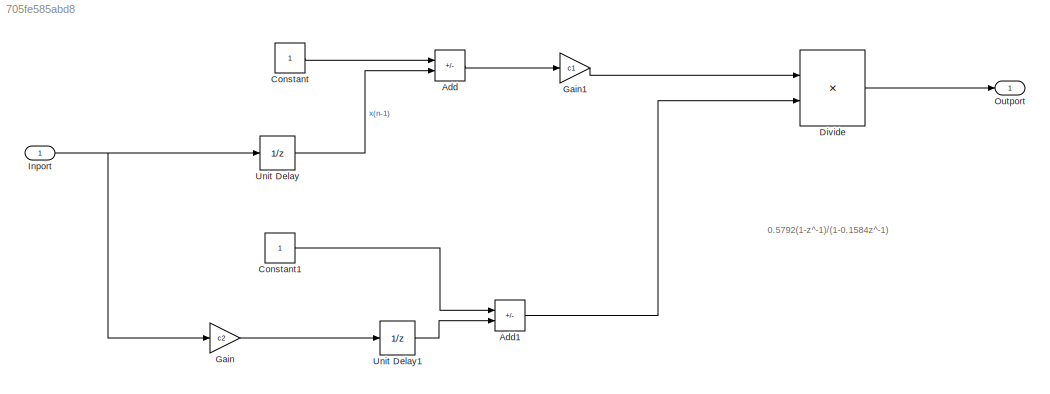
MODEL slx_705fe585abd8
KIND model
CONFIG AbsTol = auto
CONFIG EnableMultiTasking = off
CONFIG FixedStep = auto
CONFIG MaxStep = auto
CONFIG MinStep = auto
CONFIG RelTol = 1e-3
CONFIG SampleTimeConstraint = Unconstrained
CONFIG SolverName = FixedStepAuto
CONFIG StartTime = 0.0
CONFIG StopTime = 10.0
BLOCK [Sum] Add
  IconShape = rectangular
  Inputs = +-
  Ports = [2, 1]
BLOCK [Sum] Add1
  IconShape = rectangular
  Inputs = +-
  Ports = [2, 1]
BLOCK [Constant] Constant
BLOCK [Constant] Constant1
BLOCK [Product] Divide
  Inputs = */
  Ports = [2, 1]
BLOCK [Gain] Gain
  Gain = c2
BLOCK [Gain] Gain1
  Gain = c1
BLOCK [Inport] Inport
BLOCK [Outport] Outport
BLOCK [UnitDelay] Unit Delay
  HasFrameUpgradeWarning = on
  SampleTime = -1
BLOCK [UnitDelay] Unit Delay1
  HasFrameUpgradeWarning = on
  SampleTime = -1
ANNOTATION (root): 0.5792(1-z^-1)/(1-0.1584z^-1)
LINE Add1:1 -> Divide:2
LINE Add:1 -> Gain1:1
LINE Constant1:1 -> Add1:1
LINE Constant:1 -> Add:1
LINE Divide:1 -> Outport:1
LINE Gain1:1 -> Divide:1
LINE Gain:1 -> Unit Delay1:1
NET Inport:1 -> Gain:1, Unit Delay:1
LINE Unit Delay1:1 -> Add1:2
LINE Unit Delay:1 -> Add:2
note: NET lines group one-source signal fan-out (src -> all destinations, sorted); 1:1 wires keep LINE
